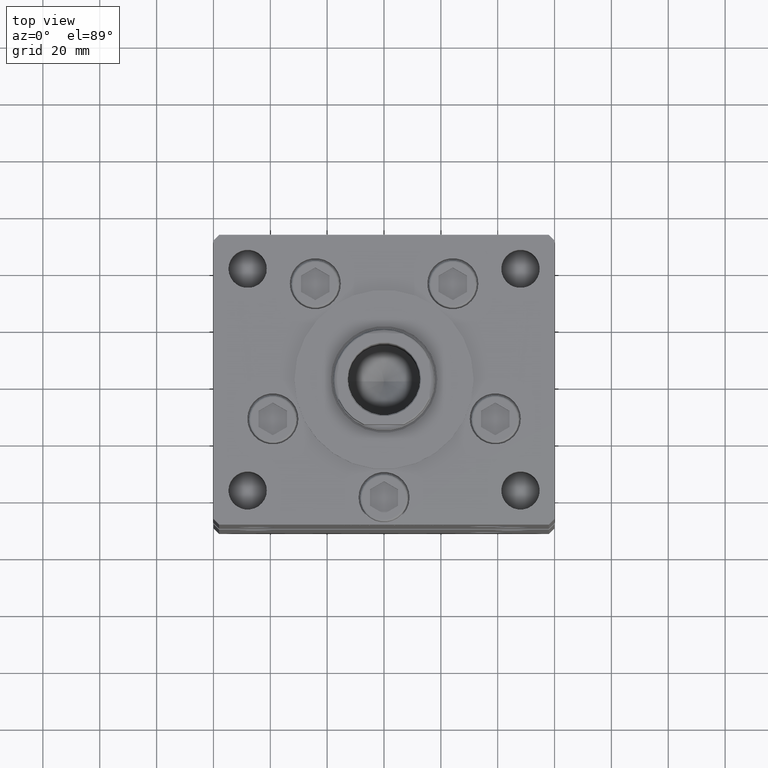
[diagram: clean part render]
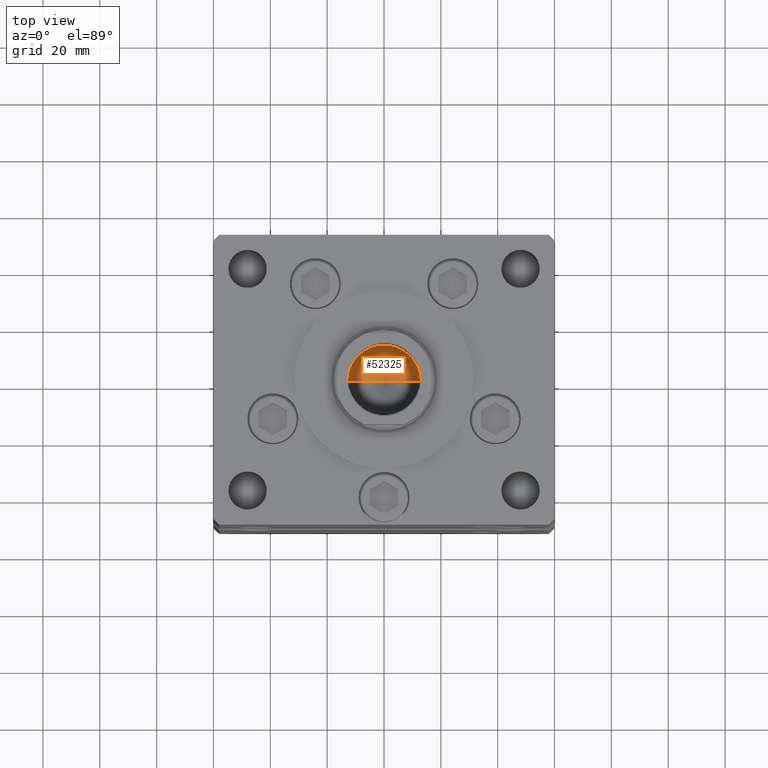
[diagram: same view with one face highlighted and labeled with its STEP entity id]
A machine part, top view. The second image highlights one B-rep face of the part: STEP entity #52325.
In plain terms, the highlighted conical surface has half-angle 59 deg.
Its self-contained STEP definition (entity closure, byte-faithful):
#581 = ORIENTED_EDGE ( 'NONE', *, *, #26888, .F. ) ;
#6294 = CARTESIAN_POINT ( 'NONE',  ( 12.74999999999999112, 0.000000000000000000, 124.2500000000000142 ) ) ;
#8083 = FACE_OUTER_BOUND ( 'NONE', #34372, .T. ) ;
#8562 = ORIENTED_EDGE ( 'NONE', *, *, #18331, .T. ) ;
#8895 = VECTOR ( 'NONE', #30689, 1000.000000000000000 ) ;
#10647 = AXIS2_PLACEMENT_3D ( 'NONE', #33544, #41313, #24706 ) ;
#13224 = CARTESIAN_POINT ( 'NONE',  ( -12.74999999999999112, 1.561424668912874125E-15, 124.2500000000000142 ) ) ;
#14043 = CARTESIAN_POINT ( 'NONE',  ( 12.74999999999999112, 0.000000000000000000, 124.2500000000000142 ) ) ;
#18331 = EDGE_CURVE ( 'NONE', #49064, #27293, #38448, .T. ) ;
#19409 = EDGE_CURVE ( 'NONE', #27293, #46908, #27762, .T. ) ;
#21211 = AXIS2_PLACEMENT_3D ( 'NONE', #28203, #36752, #32483 ) ;
#24586 = LINE ( 'NONE', #40664, #37231 ) ;
#24706 = DIRECTION ( 'NONE',  ( 1.000000000000000000, 0.000000000000000000, 0.000000000000000000 ) ) ;
#26888 = EDGE_CURVE ( 'NONE', #49064, #46908, #24586, .T. ) ;
#27293 = VERTEX_POINT ( 'NONE', #14043 ) ;
#27762 = CIRCLE ( 'NONE', #10647, 12.74999999999999112 ) ;
#28203 = CARTESIAN_POINT ( 'NONE',  ( 0.000000000000000000, 0.000000000000000000, 124.2500000000000142 ) ) ;
#30689 = DIRECTION ( 'NONE',  ( 0.8571673007021117785, 0.000000000000000000, 0.5150380749100550437 ) ) ;
#32483 = DIRECTION ( 'NONE',  ( 1.000000000000000000, 0.000000000000000000, 0.000000000000000000 ) ) ;
#33544 = CARTESIAN_POINT ( 'NONE',  ( 0.000000000000000000, 0.000000000000000000, 124.2500000000000142 ) ) ;
#34372 = EDGE_LOOP ( 'NONE', ( #581, #8562, #41326 ) ) ;
#36752 = DIRECTION ( 'NONE',  ( -0.000000000000000000, -0.000000000000000000, 1.000000000000000000 ) ) ;
#37231 = VECTOR ( 'NONE', #40917, 1000.000000000000000 ) ;
#38448 = LINE ( 'NONE', #6294, #8895 ) ;
#40664 = CARTESIAN_POINT ( 'NONE',  ( -12.74999999999999112, 1.561424668912874125E-15, 124.2500000000000142 ) ) ;
#40867 = CONICAL_SURFACE ( 'NONE', #21211, 12.74999999999999112, 1.029744258676653423 ) ;
#40917 = DIRECTION ( 'NONE',  ( -0.8571673007021117785, 1.049727191138617956E-16, 0.5150380749100550437 ) ) ;
#41313 = DIRECTION ( 'NONE',  ( -0.000000000000000000, -0.000000000000000000, 1.000000000000000000 ) ) ;
#41326 = ORIENTED_EDGE ( 'NONE', *, *, #19409, .T. ) ;
#46908 = VERTEX_POINT ( 'NONE', #13224 ) ;
#49064 = VERTEX_POINT ( 'NONE', #50151 ) ;
#50151 = CARTESIAN_POINT ( 'NONE',  ( -1.307202896762960287E-14, 0.000000000000000000, 116.5890271073986213 ) ) ;
#52325 = ADVANCED_FACE ( 'NONE', ( #8083 ), #40867, .F. ) ;